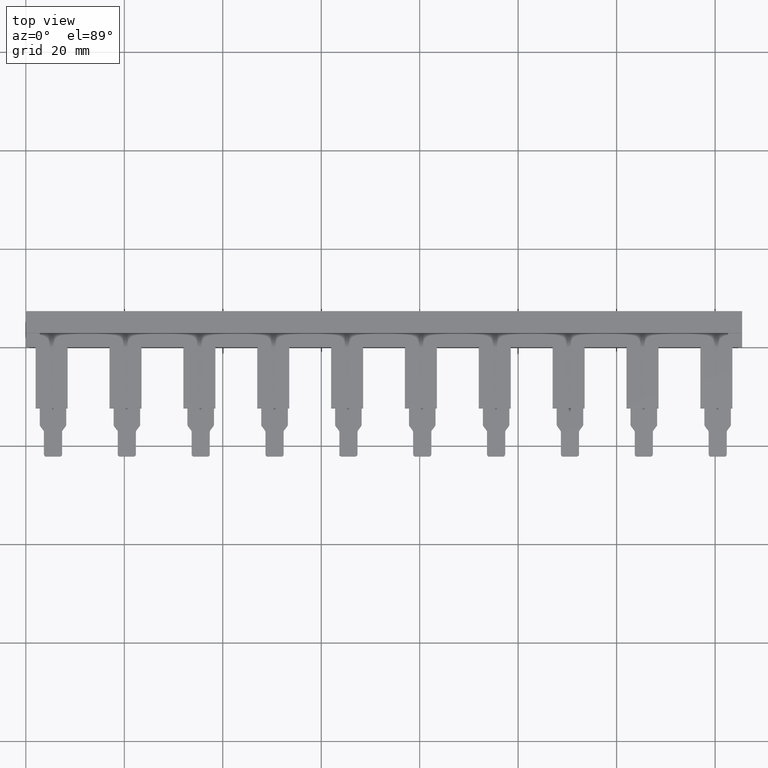
[diagram: clean part render]
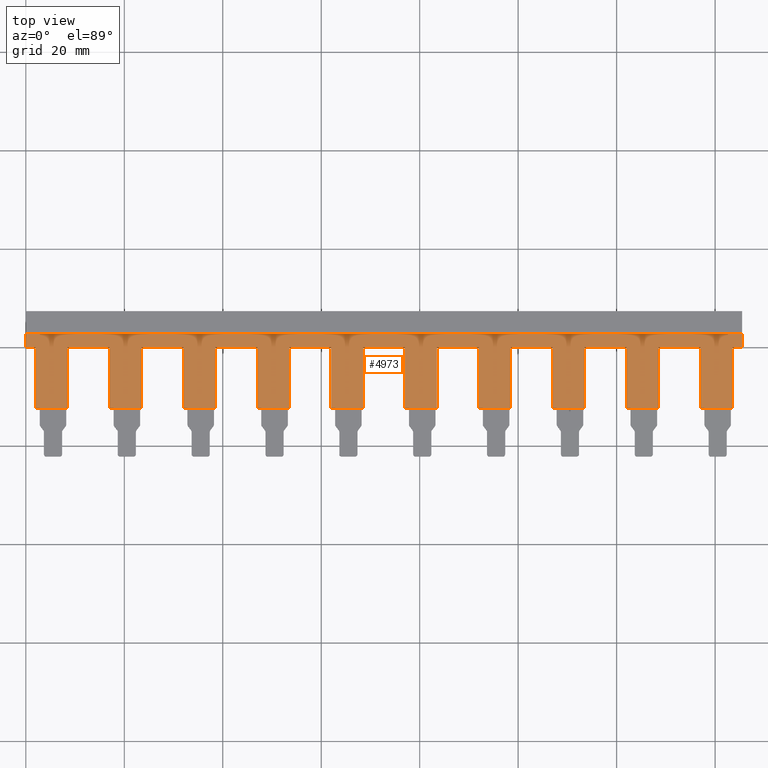
[diagram: same view with one face highlighted and labeled with its STEP entity id]
A machine part, top view. The second image highlights one B-rep face of the part: STEP entity #4973.
In plain terms, the highlighted planar face has unit normal (0, 0, 1).
Its self-contained STEP definition (entity closure, byte-faithful):
#24 = AXIS2_PLACEMENT_3D ( 'NONE', #2333, #2313, #2318 ) ;
#187 = VECTOR ( 'NONE', #4125, 1000.000000000000000 ) ;
#188 = VECTOR ( 'NONE', #3240, 1000.000000000000000 ) ;
#189 = VECTOR ( 'NONE', #2585, 1000.000000000000000 ) ;
#191 = VECTOR ( 'NONE', #3302, 1000.000000000000000 ) ;
#197 = VECTOR ( 'NONE', #3157, 1000.000000000000000 ) ;
#199 = VECTOR ( 'NONE', #3270, 1000.000000000000000 ) ;
#201 = VECTOR ( 'NONE', #2795, 1000.000000000000000 ) ;
#203 = VECTOR ( 'NONE', #2739, 1000.000000000000000 ) ;
#205 = VECTOR ( 'NONE', #3265, 1000.000000000000000 ) ;
#208 = VECTOR ( 'NONE', #3348, 1000.000000000000000 ) ;
#209 = VECTOR ( 'NONE', #3248, 1000.000000000000000 ) ;
#213 = VECTOR ( 'NONE', #3289, 1000.000000000000000 ) ;
#214 = VECTOR ( 'NONE', #3317, 1000.000000000000000 ) ;
#223 = VECTOR ( 'NONE', #3149, 1000.000000000000000 ) ;
#227 = VECTOR ( 'NONE', #3175, 1000.000000000000000 ) ;
#232 = VECTOR ( 'NONE', #3241, 1000.000000000000000 ) ;
#234 = VECTOR ( 'NONE', #3213, 1000.000000000000000 ) ;
#235 = VECTOR ( 'NONE', #3181, 1000.000000000000000 ) ;
#238 = VECTOR ( 'NONE', #3250, 1000.000000000000000 ) ;
#241 = VECTOR ( 'NONE', #3108, 1000.000000000000000 ) ;
#244 = VECTOR ( 'NONE', #3186, 1000.000000000000000 ) ;
#248 = VECTOR ( 'NONE', #3393, 1000.000000000000000 ) ;
#249 = VECTOR ( 'NONE', #3432, 1000.000000000000000 ) ;
#252 = VECTOR ( 'NONE', #3499, 1000.000000000000000 ) ;
#254 = VECTOR ( 'NONE', #3464, 1000.000000000000000 ) ;
#258 = VECTOR ( 'NONE', #3539, 1000.000000000000000 ) ;
#260 = VECTOR ( 'NONE', #3384, 1000.000000000000000 ) ;
#262 = VECTOR ( 'NONE', #3402, 1000.000000000000000 ) ;
#265 = VECTOR ( 'NONE', #3412, 1000.000000000000000 ) ;
#267 = VECTOR ( 'NONE', #3413, 1000.000000000000000 ) ;
#273 = VECTOR ( 'NONE', #3372, 1000.000000000000000 ) ;
#279 = VECTOR ( 'NONE', #3465, 1000.000000000000000 ) ;
#280 = VECTOR ( 'NONE', #3458, 1000.000000000000000 ) ;
#284 = VECTOR ( 'NONE', #3445, 1000.000000000000000 ) ;
#285 = VECTOR ( 'NONE', #3467, 1000.000000000000000 ) ;
#286 = VECTOR ( 'NONE', #3492, 1000.000000000000000 ) ;
#292 = VECTOR ( 'NONE', #3346, 1000.000000000000000 ) ;
#294 = VECTOR ( 'NONE', #3417, 1000.000000000000000 ) ;
#304 = VECTOR ( 'NONE', #3542, 1000.000000000000000 ) ;
#306 = VECTOR ( 'NONE', #3380, 1000.000000000000000 ) ;
#352 = VECTOR ( 'NONE', #3598, 1000.000000000000000 ) ;
#355 = VECTOR ( 'NONE', #3505, 1000.000000000000000 ) ;
#358 = VECTOR ( 'NONE', #3508, 1000.000000000000000 ) ;
#406 = VECTOR ( 'NONE', #3702, 1000.000000000000000 ) ;
#964 = EDGE_LOOP ( 'NONE', ( #4334, #4276, #4338, #4348, #4357, #4308, #4302, #4292, #4269, #4278, #4260, #4315, #4279, #4356, #4368, #4309, #4301, #4293, #4258, #4346, #4370, #4264, #4259, #4280, #4286, #4303, #4324, #4364, #4351, #4299, #4369, #4373, #4305, #4271, #4350, #4310, #4261, #4337, #4329, #4349, #4262, #4268, #4330, #4323 ) ) ;
#1526 = CARTESIAN_POINT ( 'NONE',  ( 107.0000000000000000, 0.0000000000000000000, 4.099999999999999600 ) ) ;
#1545 = CARTESIAN_POINT ( 'NONE',  ( 137.0000000000000000, 0.0000000000000000000, 4.099999999999999600 ) ) ;
#1549 = CARTESIAN_POINT ( 'NONE',  ( 38.50000000000000700, 0.0000000000000000000, 4.099999999999999600 ) ) ;
#1551 = CARTESIAN_POINT ( 'NONE',  ( 145.5000000000000300, 0.0000000000000000000, 4.099999999999999600 ) ) ;
#1580 = CARTESIAN_POINT ( 'NONE',  ( 128.5000000000000000, -12.40000000000000200, 4.099999999999999600 ) ) ;
#1586 = CARTESIAN_POINT ( 'NONE',  ( 62.00000000000000000, 0.0000000000000000000, 4.099999999999999600 ) ) ;
#1589 = CARTESIAN_POINT ( 'NONE',  ( 2.000000000000000000, -12.40000000000000400, 4.099999999999999600 ) ) ;
#1590 = CARTESIAN_POINT ( 'NONE',  ( 145.5000000000000300, 2.799999999999996700, 4.099999999999999600 ) ) ;
#1591 = CARTESIAN_POINT ( 'NONE',  ( 83.50000000000000000, 0.0000000000000000000, 4.099999999999999600 ) ) ;
#1594 = CARTESIAN_POINT ( 'NONE',  ( 128.5000000000000000, 0.0000000000000000000, 4.099999999999999600 ) ) ;
#1599 = CARTESIAN_POINT ( 'NONE',  ( 2.000000000000000000, 0.0000000000000000000, 4.099999999999999600 ) ) ;
#1602 = CARTESIAN_POINT ( 'NONE',  ( 143.5000000000000300, -12.40000000000000200, 4.099999999999999600 ) ) ;
#1603 = CARTESIAN_POINT ( 'NONE',  ( 23.50000000000000400, 0.0000000000000000000, 4.099999999999999600 ) ) ;
#1604 = CARTESIAN_POINT ( 'NONE',  ( 98.50000000000000000, 0.0000000000000000000, 4.099999999999999600 ) ) ;
#1606 = CARTESIAN_POINT ( 'NONE',  ( 92.00000000000000000, 0.0000000000000000000, 4.099999999999999600 ) ) ;
#1607 = CARTESIAN_POINT ( 'NONE',  ( 23.50000000000000700, -12.40000000000000200, 4.099999999999999600 ) ) ;
#1609 = CARTESIAN_POINT ( 'NONE',  ( -2.710505431213760800E-017, 2.799999999999997200, 4.099999999999999600 ) ) ;
#1614 = CARTESIAN_POINT ( 'NONE',  ( 137.0000000000000000, -12.40000000000000200, 4.099999999999999600 ) ) ;
#1619 = CARTESIAN_POINT ( 'NONE',  ( 32.00000000000000000, 0.0000000000000000000, 4.099999999999999600 ) ) ;
#1620 = CARTESIAN_POINT ( 'NONE',  ( 113.5000000000000000, 0.0000000000000000000, 4.099999999999999600 ) ) ;
#1621 = CARTESIAN_POINT ( 'NONE',  ( 122.0000000000000000, -12.40000000000000200, 4.099999999999999600 ) ) ;
#1629 = CARTESIAN_POINT ( 'NONE',  ( 107.0000000000000000, -12.40000000000000200, 4.099999999999999600 ) ) ;
#1632 = CARTESIAN_POINT ( 'NONE',  ( 68.50000000000000000, 0.0000000000000000000, 4.099999999999999600 ) ) ;
#1633 = CARTESIAN_POINT ( 'NONE',  ( 77.00000000000000000, 0.0000000000000000000, 4.099999999999999600 ) ) ;
#1634 = CARTESIAN_POINT ( 'NONE',  ( 143.5000000000000300, 0.0000000000000000000, 4.099999999999999600 ) ) ;
#1636 = CARTESIAN_POINT ( 'NONE',  ( 8.500000000000000000, -12.40000000000000200, 4.099999999999999600 ) ) ;
#1638 = CARTESIAN_POINT ( 'NONE',  ( 92.00000000000000000, -12.40000000000000200, 4.099999999999999600 ) ) ;
#1642 = CARTESIAN_POINT ( 'NONE',  ( 47.00000000000000000, -12.40000000000000200, 4.099999999999999600 ) ) ;
#1644 = CARTESIAN_POINT ( 'NONE',  ( 122.0000000000000000, 0.0000000000000000000, 4.099999999999999600 ) ) ;
#1645 = CARTESIAN_POINT ( 'NONE',  ( 53.50000000000000700, 0.0000000000000000000, 4.099999999999999600 ) ) ;
#1647 = CARTESIAN_POINT ( 'NONE',  ( -4.397042143968986400E-017, 0.0000000000000000000, 4.099999999999999600 ) ) ;
#1652 = CARTESIAN_POINT ( 'NONE',  ( 8.500000000000000000, 0.0000000000000000000, 4.099999999999999600 ) ) ;
#1654 = CARTESIAN_POINT ( 'NONE',  ( 68.50000000000000000, -12.40000000000000200, 4.099999999999999600 ) ) ;
#1657 = CARTESIAN_POINT ( 'NONE',  ( 77.00000000000000000, -12.40000000000000200, 4.099999999999999600 ) ) ;
#1662 = CARTESIAN_POINT ( 'NONE',  ( 62.00000000000000000, -12.40000000000000200, 4.099999999999999600 ) ) ;
#1663 = CARTESIAN_POINT ( 'NONE',  ( 38.50000000000000700, -12.40000000000000200, 4.099999999999999600 ) ) ;
#1666 = CARTESIAN_POINT ( 'NONE',  ( 47.00000000000000000, 0.0000000000000000000, 4.099999999999999600 ) ) ;
#1669 = CARTESIAN_POINT ( 'NONE',  ( 98.50000000000000000, -12.40000000000000200, 4.099999999999999600 ) ) ;
#1675 = CARTESIAN_POINT ( 'NONE',  ( 32.00000000000000000, -12.40000000000000200, 4.099999999999999600 ) ) ;
#1682 = CARTESIAN_POINT ( 'NONE',  ( 83.50000000000000000, -12.40000000000000200, 4.099999999999999600 ) ) ;
#1684 = CARTESIAN_POINT ( 'NONE',  ( 53.50000000000000700, -12.40000000000000200, 4.099999999999999600 ) ) ;
#1686 = CARTESIAN_POINT ( 'NONE',  ( 17.00000000000000400, 0.0000000000000000000, 4.099999999999999600 ) ) ;
#1706 = CARTESIAN_POINT ( 'NONE',  ( 113.5000000000000000, -12.40000000000000200, 4.099999999999999600 ) ) ;
#1738 = CARTESIAN_POINT ( 'NONE',  ( 17.00000000000000400, -12.40000000000000200, 4.099999999999999600 ) ) ;
#2313 = DIRECTION ( 'NONE',  ( 0.0000000000000000000, 0.0000000000000000000, 1.000000000000000000 ) ) ;
#2318 = DIRECTION ( 'NONE',  ( 1.000000000000000000, 0.0000000000000000000, -0.0000000000000000000 ) ) ;
#2333 = CARTESIAN_POINT ( 'NONE',  ( 17.00000000000000000, 0.0000000000000000000, 4.099999999999999600 ) ) ;
#2347 = PLANE ( 'NONE',  #24 ) ;
#2360 = FACE_OUTER_BOUND ( 'NONE', #964, .T. ) ;
#2462 = CARTESIAN_POINT ( 'NONE',  ( 2.000000000000000000, -12.50000000000000200, 4.099999999999999600 ) ) ;
#2585 = DIRECTION ( 'NONE',  ( -0.0000000000000000000, -1.000000000000000000, -0.0000000000000000000 ) ) ;
#2640 = LINE ( 'NONE', #2689, #203 ) ;
#2689 = CARTESIAN_POINT ( 'NONE',  ( 0.0000000000000000000, 0.0000000000000000000, 4.099999999999999600 ) ) ;
#2739 = DIRECTION ( 'NONE',  ( 1.000000000000000000, 0.0000000000000000000, -0.0000000000000000000 ) ) ;
#2740 = LINE ( 'NONE', #2784, #201 ) ;
#2784 = CARTESIAN_POINT ( 'NONE',  ( 143.5000000000000000, 0.0000000000000000000, 4.099999999999999600 ) ) ;
#2795 = DIRECTION ( 'NONE',  ( 1.000000000000000000, 0.0000000000000000000, -0.0000000000000000000 ) ) ;
#3108 = DIRECTION ( 'NONE',  ( -2.775557561562891400E-016, 1.000000000000000000, -0.0000000000000000000 ) ) ;
#3109 = LINE ( 'NONE', #3112, #235 ) ;
#3112 = CARTESIAN_POINT ( 'NONE',  ( 145.5000000000000000, 2.799999999999996700, 4.099999999999999600 ) ) ;
#3115 = LINE ( 'NONE', #3141, #241 ) ;
#3141 = CARTESIAN_POINT ( 'NONE',  ( 143.5000000000000000, 0.0000000000000000000, 4.099999999999999600 ) ) ;
#3149 = DIRECTION ( 'NONE',  ( 1.000000000000000000, 0.0000000000000000000, -0.0000000000000000000 ) ) ;
#3152 = LINE ( 'NONE', #3180, #197 ) ;
#3154 = LINE ( 'NONE', #3207, #234 ) ;
#3157 = DIRECTION ( 'NONE',  ( -0.0000000000000000000, -1.000000000000000000, -0.0000000000000000000 ) ) ;
#3158 = CARTESIAN_POINT ( 'NONE',  ( 53.50000000000000700, 0.0000000000000000000, 4.099999999999999600 ) ) ;
#3161 = LINE ( 'NONE', #3158, #223 ) ;
#3170 = CARTESIAN_POINT ( 'NONE',  ( 128.5000000000000000, 0.0000000000000000000, 4.099999999999999600 ) ) ;
#3175 = DIRECTION ( 'NONE',  ( -2.775557561562891400E-016, 1.000000000000000000, -0.0000000000000000000 ) ) ;
#3177 = LINE ( 'NONE', #2462, #189 ) ;
#3180 = CARTESIAN_POINT ( 'NONE',  ( 17.00000000000000400, -12.50000000000000000, 4.099999999999999600 ) ) ;
#3181 = DIRECTION ( 'NONE',  ( -7.709882115452468300E-016, 1.000000000000000000, -0.0000000000000000000 ) ) ;
#3182 = CARTESIAN_POINT ( 'NONE',  ( 0.0000000000000000000, 7.300000000000000700, 4.099999999999999600 ) ) ;
#3183 = LINE ( 'NONE', #3170, #227 ) ;
#3184 = LINE ( 'NONE', #3182, #244 ) ;
#3186 = DIRECTION ( 'NONE',  ( -2.409338161078896300E-017, -1.000000000000000000, -0.0000000000000000000 ) ) ;
#3207 = CARTESIAN_POINT ( 'NONE',  ( 53.50000000000000700, 0.0000000000000000000, 4.099999999999999600 ) ) ;
#3213 = DIRECTION ( 'NONE',  ( 1.000000000000000000, 0.0000000000000000000, -0.0000000000000000000 ) ) ;
#3240 = DIRECTION ( 'NONE',  ( 1.000000000000000000, 0.0000000000000000000, -0.0000000000000000000 ) ) ;
#3241 = DIRECTION ( 'NONE',  ( 1.000000000000000000, 0.0000000000000000000, -0.0000000000000000000 ) ) ;
#3244 = LINE ( 'NONE', #3256, #232 ) ;
#3245 = LINE ( 'NONE', #3249, #238 ) ;
#3246 = CARTESIAN_POINT ( 'NONE',  ( 53.50000000000000700, 0.0000000000000000000, 4.099999999999999600 ) ) ;
#3248 = DIRECTION ( 'NONE',  ( 1.000000000000000000, 0.0000000000000000000, -0.0000000000000000000 ) ) ;
#3249 = CARTESIAN_POINT ( 'NONE',  ( 137.0000000000000000, -12.50000000000000000, 4.099999999999999600 ) ) ;
#3250 = DIRECTION ( 'NONE',  ( -0.0000000000000000000, -1.000000000000000000, -0.0000000000000000000 ) ) ;
#3256 = CARTESIAN_POINT ( 'NONE',  ( 23.50000000000000000, 0.0000000000000000000, 4.099999999999999600 ) ) ;
#3263 = CARTESIAN_POINT ( 'NONE',  ( 53.50000000000000700, 0.0000000000000000000, 4.099999999999999600 ) ) ;
#3264 = LINE ( 'NONE', #3266, #199 ) ;
#3265 = DIRECTION ( 'NONE',  ( -1.000000000000000000, 0.0000000000000000000, 0.0000000000000000000 ) ) ;
#3266 = CARTESIAN_POINT ( 'NONE',  ( 122.0000000000000000, -12.50000000000000000, 4.099999999999999600 ) ) ;
#3270 = DIRECTION ( 'NONE',  ( -0.0000000000000000000, -1.000000000000000000, -0.0000000000000000000 ) ) ;
#3273 = CARTESIAN_POINT ( 'NONE',  ( 17.00000000000000400, -12.40000000000000200, 4.099999999999999600 ) ) ;
#3282 = CARTESIAN_POINT ( 'NONE',  ( 53.50000000000000700, 0.0000000000000000000, 4.099999999999999600 ) ) ;
#3284 = LINE ( 'NONE', #3246, #209 ) ;
#3286 = LINE ( 'NONE', #3273, #205 ) ;
#3287 = LINE ( 'NONE', #3282, #188 ) ;
#3288 = LINE ( 'NONE', #3263, #213 ) ;
#3289 = DIRECTION ( 'NONE',  ( 1.000000000000000000, 0.0000000000000000000, -0.0000000000000000000 ) ) ;
#3295 = LINE ( 'NONE', #3296, #191 ) ;
#3296 = CARTESIAN_POINT ( 'NONE',  ( 137.0000000000000000, -12.40000000000000200, 4.099999999999999600 ) ) ;
#3297 = LINE ( 'NONE', #3343, #208 ) ;
#3302 = DIRECTION ( 'NONE',  ( -1.000000000000000000, 0.0000000000000000000, 0.0000000000000000000 ) ) ;
#3317 = DIRECTION ( 'NONE',  ( -1.387778780781445700E-016, 1.000000000000000000, -0.0000000000000000000 ) ) ;
#3320 = LINE ( 'NONE', #3349, #292 ) ;
#3322 = LINE ( 'NONE', #3366, #273 ) ;
#3339 = CARTESIAN_POINT ( 'NONE',  ( 8.499999999999998200, 0.0000000000000000000, 4.099999999999999600 ) ) ;
#3343 = CARTESIAN_POINT ( 'NONE',  ( 38.50000000000000700, 0.0000000000000000000, 4.099999999999999600 ) ) ;
#3344 = LINE ( 'NONE', #3339, #214 ) ;
#3346 = DIRECTION ( 'NONE',  ( -1.000000000000000000, 0.0000000000000000000, 0.0000000000000000000 ) ) ;
#3348 = DIRECTION ( 'NONE',  ( -2.775557561562891400E-016, 1.000000000000000000, -0.0000000000000000000 ) ) ;
#3349 = CARTESIAN_POINT ( 'NONE',  ( 32.00000000000000000, -12.40000000000000200, 4.099999999999999600 ) ) ;
#3365 = LINE ( 'NONE', #3390, #260 ) ;
#3366 = CARTESIAN_POINT ( 'NONE',  ( 83.50000000000000000, 0.0000000000000000000, 4.099999999999999600 ) ) ;
#3371 = LINE ( 'NONE', #3373, #262 ) ;
#3372 = DIRECTION ( 'NONE',  ( -2.775557561562891400E-016, 1.000000000000000000, -0.0000000000000000000 ) ) ;
#3373 = CARTESIAN_POINT ( 'NONE',  ( 113.5000000000000000, 0.0000000000000000000, 4.099999999999999600 ) ) ;
#3380 = DIRECTION ( 'NONE',  ( -0.0000000000000000000, -1.000000000000000000, -0.0000000000000000000 ) ) ;
#3384 = DIRECTION ( 'NONE',  ( -1.000000000000000000, 0.0000000000000000000, 0.0000000000000000000 ) ) ;
#3388 = LINE ( 'NONE', #3392, #306 ) ;
#3390 = CARTESIAN_POINT ( 'NONE',  ( 77.00000000000000000, -12.40000000000000200, 4.099999999999999600 ) ) ;
#3391 = LINE ( 'NONE', #3403, #248 ) ;
#3392 = CARTESIAN_POINT ( 'NONE',  ( 92.00000000000000000, -12.50000000000000000, 4.099999999999999600 ) ) ;
#3393 = DIRECTION ( 'NONE',  ( -2.775557561562891400E-016, 1.000000000000000000, -0.0000000000000000000 ) ) ;
#3400 = LINE ( 'NONE', #3450, #294 ) ;
#3402 = DIRECTION ( 'NONE',  ( -2.775557561562891400E-016, 1.000000000000000000, -0.0000000000000000000 ) ) ;
#3403 = CARTESIAN_POINT ( 'NONE',  ( 23.50000000000000400, 0.0000000000000000000, 4.099999999999999600 ) ) ;
#3411 = LINE ( 'NONE', #3431, #249 ) ;
#3412 = DIRECTION ( 'NONE',  ( -2.775557561562891400E-016, 1.000000000000000000, -0.0000000000000000000 ) ) ;
#3413 = DIRECTION ( 'NONE',  ( 1.000000000000000000, 0.0000000000000000000, -0.0000000000000000000 ) ) ;
#3417 = DIRECTION ( 'NONE',  ( -1.000000000000000000, 0.0000000000000000000, 0.0000000000000000000 ) ) ;
#3420 = LINE ( 'NONE', #3437, #284 ) ;
#3425 = CARTESIAN_POINT ( 'NONE',  ( 68.50000000000000000, 0.0000000000000000000, 4.099999999999999600 ) ) ;
#3429 = LINE ( 'NONE', #3455, #254 ) ;
#3431 = CARTESIAN_POINT ( 'NONE',  ( 62.00000000000000000, -12.50000000000000000, 4.099999999999999600 ) ) ;
#3432 = DIRECTION ( 'NONE',  ( -0.0000000000000000000, -1.000000000000000000, -0.0000000000000000000 ) ) ;
#3436 = CARTESIAN_POINT ( 'NONE',  ( 53.50000000000000700, 0.0000000000000000000, 4.099999999999999600 ) ) ;
#3437 = CARTESIAN_POINT ( 'NONE',  ( 47.00000000000000000, -12.50000000000000000, 4.099999999999999600 ) ) ;
#3444 = LINE ( 'NONE', #3425, #265 ) ;
#3445 = DIRECTION ( 'NONE',  ( -0.0000000000000000000, -1.000000000000000000, -0.0000000000000000000 ) ) ;
#3447 = LINE ( 'NONE', #3436, #267 ) ;
#3450 = CARTESIAN_POINT ( 'NONE',  ( 47.00000000000000000, -12.40000000000000200, 4.099999999999999600 ) ) ;
#3455 = CARTESIAN_POINT ( 'NONE',  ( 77.00000000000000000, -12.50000000000000000, 4.099999999999999600 ) ) ;
#3457 = LINE ( 'NONE', #3477, #285 ) ;
#3458 = DIRECTION ( 'NONE',  ( 1.000000000000000000, 2.668805347656626200E-016, 0.0000000000000000000 ) ) ;
#3463 = LINE ( 'NONE', #3488, #280 ) ;
#3464 = DIRECTION ( 'NONE',  ( -0.0000000000000000000, -1.000000000000000000, -0.0000000000000000000 ) ) ;
#3465 = DIRECTION ( 'NONE',  ( -2.775557561562891400E-016, 1.000000000000000000, -0.0000000000000000000 ) ) ;
#3467 = DIRECTION ( 'NONE',  ( -1.000000000000000000, 0.0000000000000000000, 0.0000000000000000000 ) ) ;
#3477 = CARTESIAN_POINT ( 'NONE',  ( 62.00000000000000000, -12.40000000000000200, 4.099999999999999600 ) ) ;
#3480 = CARTESIAN_POINT ( 'NONE',  ( 53.50000000000000700, 0.0000000000000000000, 4.099999999999999600 ) ) ;
#3481 = LINE ( 'NONE', #3485, #286 ) ;
#3485 = CARTESIAN_POINT ( 'NONE',  ( 122.0000000000000000, -12.40000000000000200, 4.099999999999999600 ) ) ;
#3488 = CARTESIAN_POINT ( 'NONE',  ( 8.500000000000000000, -12.40000000000000200, 4.099999999999999600 ) ) ;
#3492 = DIRECTION ( 'NONE',  ( -1.000000000000000000, 0.0000000000000000000, 0.0000000000000000000 ) ) ;
#3498 = LINE ( 'NONE', #3480, #279 ) ;
#3499 = DIRECTION ( 'NONE',  ( -0.0000000000000000000, -1.000000000000000000, -0.0000000000000000000 ) ) ;
#3505 = DIRECTION ( 'NONE',  ( -1.000000000000000000, 0.0000000000000000000, 0.0000000000000000000 ) ) ;
#3508 = DIRECTION ( 'NONE',  ( 1.000000000000000000, 0.0000000000000000000, -0.0000000000000000000 ) ) ;
#3509 = LINE ( 'NONE', #3536, #258 ) ;
#3510 = LINE ( 'NONE', #3540, #304 ) ;
#3511 = CARTESIAN_POINT ( 'NONE',  ( 32.00000000000000000, -12.50000000000000000, 4.099999999999999600 ) ) ;
#3513 = CARTESIAN_POINT ( 'NONE',  ( 8.499999999999998200, 0.0000000000000000000, 4.099999999999999600 ) ) ;
#3516 = CARTESIAN_POINT ( 'NONE',  ( 92.00000000000000000, -12.40000000000000200, 4.099999999999999600 ) ) ;
#3530 = LINE ( 'NONE', #3513, #358 ) ;
#3536 = CARTESIAN_POINT ( 'NONE',  ( 98.50000000000000000, 0.0000000000000000000, 4.099999999999999600 ) ) ;
#3537 = LINE ( 'NONE', #3511, #252 ) ;
#3539 = DIRECTION ( 'NONE',  ( -2.775557561562891400E-016, 1.000000000000000000, -0.0000000000000000000 ) ) ;
#3540 = CARTESIAN_POINT ( 'NONE',  ( 107.0000000000000000, -12.40000000000000200, 4.099999999999999600 ) ) ;
#3542 = DIRECTION ( 'NONE',  ( -1.000000000000000000, 0.0000000000000000000, 0.0000000000000000000 ) ) ;
#3543 = LINE ( 'NONE', #3516, #355 ) ;
#3549 = LINE ( 'NONE', #3613, #352 ) ;
#3598 = DIRECTION ( 'NONE',  ( -0.0000000000000000000, -1.000000000000000000, -0.0000000000000000000 ) ) ;
#3613 = CARTESIAN_POINT ( 'NONE',  ( 107.0000000000000000, -12.50000000000000000, 4.099999999999999600 ) ) ;
#3694 = LINE ( 'NONE', #3707, #406 ) ;
#3702 = DIRECTION ( 'NONE',  ( 1.000000000000000000, 0.0000000000000000000, -0.0000000000000000000 ) ) ;
#3707 = CARTESIAN_POINT ( 'NONE',  ( 38.50000000000000700, 0.0000000000000000000, 4.099999999999999600 ) ) ;
#4123 = LINE ( 'NONE', #4124, #187 ) ;
#4124 = CARTESIAN_POINT ( 'NONE',  ( 17.00000000000000000, 2.799999999999996700, 4.099999999999999600 ) ) ;
#4125 = DIRECTION ( 'NONE',  ( -1.000000000000000000, -0.0000000000000000000, 0.0000000000000000000 ) ) ;
#4258 = ORIENTED_EDGE ( 'NONE', *, *, #5159, .F. ) ;
#4259 = ORIENTED_EDGE ( 'NONE', *, *, #5186, .F. ) ;
#4260 = ORIENTED_EDGE ( 'NONE', *, *, #5154, .T. ) ;
#4261 = ORIENTED_EDGE ( 'NONE', *, *, #5169, .T. ) ;
#4262 = ORIENTED_EDGE ( 'NONE', *, *, #5210, .T. ) ;
#4264 = ORIENTED_EDGE ( 'NONE', *, *, #5242, .T. ) ;
#4268 = ORIENTED_EDGE ( 'NONE', *, *, #5271, .T. ) ;
#4269 = ORIENTED_EDGE ( 'NONE', *, *, #5152, .T. ) ;
#4271 = ORIENTED_EDGE ( 'NONE', *, *, #5222, .T. ) ;
#4276 = ORIENTED_EDGE ( 'NONE', *, *, #5168, .T. ) ;
#4278 = ORIENTED_EDGE ( 'NONE', *, *, #5132, .T. ) ;
#4279 = ORIENTED_EDGE ( 'NONE', *, *, #5151, .T. ) ;
#4280 = ORIENTED_EDGE ( 'NONE', *, *, #5177, .T. ) ;
#4286 = ORIENTED_EDGE ( 'NONE', *, *, #5302, .T. ) ;
#4292 = ORIENTED_EDGE ( 'NONE', *, *, #5128, .T. ) ;
#4293 = ORIENTED_EDGE ( 'NONE', *, *, #5136, .T. ) ;
#4299 = ORIENTED_EDGE ( 'NONE', *, *, #5219, .T. ) ;
#4301 = ORIENTED_EDGE ( 'NONE', *, *, #5244, .T. ) ;
#4302 = ORIENTED_EDGE ( 'NONE', *, *, #5173, .F. ) ;
#4303 = ORIENTED_EDGE ( 'NONE', *, *, #5213, .T. ) ;
#4305 = ORIENTED_EDGE ( 'NONE', *, *, #5140, .T. ) ;
#4308 = ORIENTED_EDGE ( 'NONE', *, *, #5157, .T. ) ;
#4309 = ORIENTED_EDGE ( 'NONE', *, *, #5181, .T. ) ;
#4310 = ORIENTED_EDGE ( 'NONE', *, *, #5193, .T. ) ;
#4315 = ORIENTED_EDGE ( 'NONE', *, *, #5137, .T. ) ;
#4323 = ORIENTED_EDGE ( 'NONE', *, *, #5204, .T. ) ;
#4324 = ORIENTED_EDGE ( 'NONE', *, *, #5208, .F. ) ;
#4329 = ORIENTED_EDGE ( 'NONE', *, *, #5250, .F. ) ;
#4330 = ORIENTED_EDGE ( 'NONE', *, *, #5243, .F. ) ;
#4334 = ORIENTED_EDGE ( 'NONE', *, *, #5161, .T. ) ;
#4337 = ORIENTED_EDGE ( 'NONE', *, *, #5199, .T. ) ;
#4338 = ORIENTED_EDGE ( 'NONE', *, *, #5230, .F. ) ;
#4346 = ORIENTED_EDGE ( 'NONE', *, *, #5200, .T. ) ;
#4348 = ORIENTED_EDGE ( 'NONE', *, *, #5145, .T. ) ;
#4349 = ORIENTED_EDGE ( 'NONE', *, *, #5241, .T. ) ;
#4350 = ORIENTED_EDGE ( 'NONE', *, *, #5194, .F. ) ;
#4351 = ORIENTED_EDGE ( 'NONE', *, *, #5147, .T. ) ;
#4356 = ORIENTED_EDGE ( 'NONE', *, *, #5150, .T. ) ;
#4357 = ORIENTED_EDGE ( 'NONE', *, *, #5163, .T. ) ;
#4364 = ORIENTED_EDGE ( 'NONE', *, *, #5224, .T. ) ;
#4368 = ORIENTED_EDGE ( 'NONE', *, *, #5225, .T. ) ;
#4369 = ORIENTED_EDGE ( 'NONE', *, *, #5229, .F. ) ;
#4370 = ORIENTED_EDGE ( 'NONE', *, *, #5166, .T. ) ;
#4373 = ORIENTED_EDGE ( 'NONE', *, *, #5220, .T. ) ;
#4584 = VERTEX_POINT ( 'NONE', #1526 ) ;
#4590 = VERTEX_POINT ( 'NONE', #1549 ) ;
#4591 = VERTEX_POINT ( 'NONE', #1580 ) ;
#4593 = VERTEX_POINT ( 'NONE', #1545 ) ;
#4594 = VERTEX_POINT ( 'NONE', #1551 ) ;
#4600 = VERTEX_POINT ( 'NONE', #1594 ) ;
#4601 = VERTEX_POINT ( 'NONE', #1619 ) ;
#4604 = VERTEX_POINT ( 'NONE', #1614 ) ;
#4605 = VERTEX_POINT ( 'NONE', #1645 ) ;
#4606 = VERTEX_POINT ( 'NONE', #1620 ) ;
#4607 = VERTEX_POINT ( 'NONE', #1647 ) ;
#4609 = VERTEX_POINT ( 'NONE', #1604 ) ;
#4610 = VERTEX_POINT ( 'NONE', #1621 ) ;
#4612 = VERTEX_POINT ( 'NONE', #1634 ) ;
#4613 = VERTEX_POINT ( 'NONE', #1606 ) ;
#4614 = VERTEX_POINT ( 'NONE', #1632 ) ;
#4616 = VERTEX_POINT ( 'NONE', #1589 ) ;
#4624 = VERTEX_POINT ( 'NONE', #1638 ) ;
#4628 = VERTEX_POINT ( 'NONE', #1642 ) ;
#4630 = VERTEX_POINT ( 'NONE', #1633 ) ;
#4636 = VERTEX_POINT ( 'NONE', #1602 ) ;
#4638 = VERTEX_POINT ( 'NONE', #1644 ) ;
#4639 = VERTEX_POINT ( 'NONE', #1609 ) ;
#4640 = VERTEX_POINT ( 'NONE', #1586 ) ;
#4643 = VERTEX_POINT ( 'NONE', #1629 ) ;
#4645 = VERTEX_POINT ( 'NONE', #1590 ) ;
#4647 = VERTEX_POINT ( 'NONE', #1607 ) ;
#4648 = VERTEX_POINT ( 'NONE', #1636 ) ;
#4650 = VERTEX_POINT ( 'NONE', #1591 ) ;
#4651 = VERTEX_POINT ( 'NONE', #1599 ) ;
#4652 = VERTEX_POINT ( 'NONE', #1603 ) ;
#4664 = VERTEX_POINT ( 'NONE', #1657 ) ;
#4668 = VERTEX_POINT ( 'NONE', #1684 ) ;
#4675 = VERTEX_POINT ( 'NONE', #1682 ) ;
#4677 = VERTEX_POINT ( 'NONE', #1706 ) ;
#4680 = VERTEX_POINT ( 'NONE', #1686 ) ;
#4681 = VERTEX_POINT ( 'NONE', #1663 ) ;
#4682 = VERTEX_POINT ( 'NONE', #1654 ) ;
#4693 = VERTEX_POINT ( 'NONE', #1652 ) ;
#4701 = VERTEX_POINT ( 'NONE', #1669 ) ;
#4707 = VERTEX_POINT ( 'NONE', #1666 ) ;
#4716 = VERTEX_POINT ( 'NONE', #1662 ) ;
#4719 = VERTEX_POINT ( 'NONE', #1675 ) ;
#4721 = VERTEX_POINT ( 'NONE', #1738 ) ;
#4973 = ADVANCED_FACE ( 'NONE', ( #2360 ), #2347, .T. ) ;
#5128 = EDGE_CURVE ( 'NONE', #4636, #4612, #3115, .T. ) ;
#5132 = EDGE_CURVE ( 'NONE', #4594, #4645, #3109, .T. ) ;
#5136 = EDGE_CURVE ( 'NONE', #4680, #4721, #3152, .T. ) ;
#5137 = EDGE_CURVE ( 'NONE', #4639, #4607, #3184, .T. ) ;
#5140 = EDGE_CURVE ( 'NONE', #4614, #4630, #3161, .T. ) ;
#5145 = EDGE_CURVE ( 'NONE', #4591, #4600, #3183, .T. ) ;
#5147 = EDGE_CURVE ( 'NONE', #4605, #4640, #3154, .T. ) ;
#5150 = EDGE_CURVE ( 'NONE', #4651, #4616, #3177, .T. ) ;
#5151 = EDGE_CURVE ( 'NONE', #4607, #4651, #2640, .T. ) ;
#5152 = EDGE_CURVE ( 'NONE', #4612, #4594, #2740, .T. ) ;
#5154 = EDGE_CURVE ( 'NONE', #4645, #4639, #4123, .T. ) ;
#5157 = EDGE_CURVE ( 'NONE', #4593, #4604, #3245, .T. ) ;
#5159 = EDGE_CURVE ( 'NONE', #4647, #4721, #3286, .T. ) ;
#5161 = EDGE_CURVE ( 'NONE', #4606, #4638, #3288, .T. ) ;
#5163 = EDGE_CURVE ( 'NONE', #4600, #4593, #3287, .T. ) ;
#5166 = EDGE_CURVE ( 'NONE', #4652, #4601, #3244, .T. ) ;
#5168 = EDGE_CURVE ( 'NONE', #4638, #4610, #3264, .T. ) ;
#5169 = EDGE_CURVE ( 'NONE', #4650, #4613, #3284, .T. ) ;
#5173 = EDGE_CURVE ( 'NONE', #4636, #4604, #3295, .T. ) ;
#5177 = EDGE_CURVE ( 'NONE', #4681, #4590, #3297, .T. ) ;
#5181 = EDGE_CURVE ( 'NONE', #4648, #4693, #3344, .T. ) ;
#5186 = EDGE_CURVE ( 'NONE', #4681, #4719, #3320, .T. ) ;
#5193 = EDGE_CURVE ( 'NONE', #4675, #4650, #3322, .T. ) ;
#5194 = EDGE_CURVE ( 'NONE', #4675, #4664, #3365, .T. ) ;
#5199 = EDGE_CURVE ( 'NONE', #4613, #4624, #3388, .T. ) ;
#5200 = EDGE_CURVE ( 'NONE', #4647, #4652, #3391, .T. ) ;
#5204 = EDGE_CURVE ( 'NONE', #4677, #4606, #3371, .T. ) ;
#5208 = EDGE_CURVE ( 'NONE', #4668, #4628, #3400, .T. ) ;
#5210 = EDGE_CURVE ( 'NONE', #4609, #4584, #3447, .T. ) ;
#5213 = EDGE_CURVE ( 'NONE', #4707, #4628, #3420, .T. ) ;
#5219 = EDGE_CURVE ( 'NONE', #4640, #4716, #3411, .T. ) ;
#5220 = EDGE_CURVE ( 'NONE', #4682, #4614, #3444, .T. ) ;
#5222 = EDGE_CURVE ( 'NONE', #4630, #4664, #3429, .T. ) ;
#5224 = EDGE_CURVE ( 'NONE', #4668, #4605, #3498, .T. ) ;
#5225 = EDGE_CURVE ( 'NONE', #4616, #4648, #3463, .T. ) ;
#5229 = EDGE_CURVE ( 'NONE', #4682, #4716, #3457, .T. ) ;
#5230 = EDGE_CURVE ( 'NONE', #4591, #4610, #3481, .T. ) ;
#5241 = EDGE_CURVE ( 'NONE', #4701, #4609, #3509, .T. ) ;
#5242 = EDGE_CURVE ( 'NONE', #4601, #4719, #3537, .T. ) ;
#5243 = EDGE_CURVE ( 'NONE', #4677, #4643, #3510, .T. ) ;
#5244 = EDGE_CURVE ( 'NONE', #4693, #4680, #3530, .T. ) ;
#5250 = EDGE_CURVE ( 'NONE', #4701, #4624, #3543, .T. ) ;
#5271 = EDGE_CURVE ( 'NONE', #4584, #4643, #3549, .T. ) ;
#5302 = EDGE_CURVE ( 'NONE', #4590, #4707, #3694, .T. ) ;